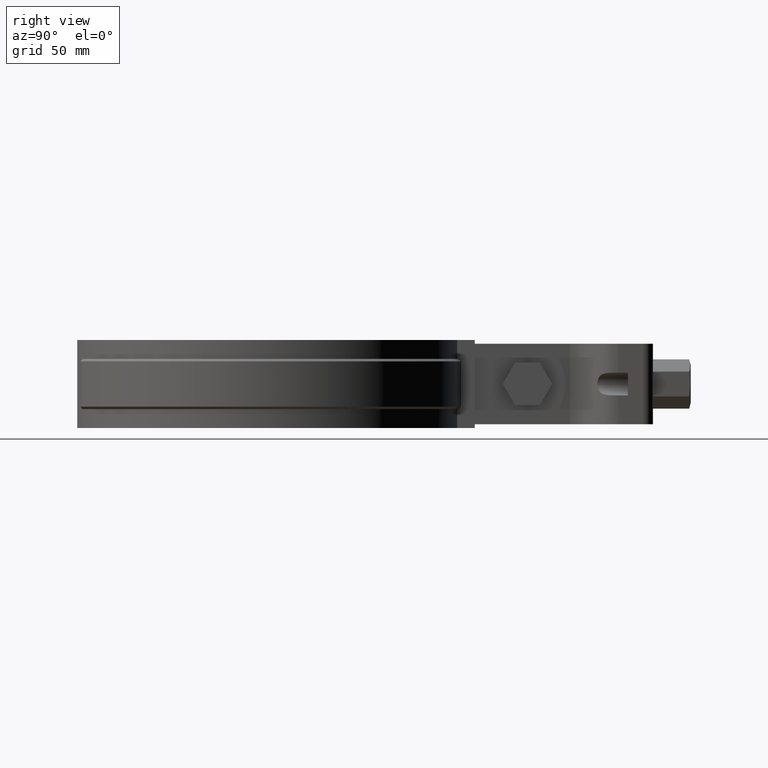
[diagram: clean part render]
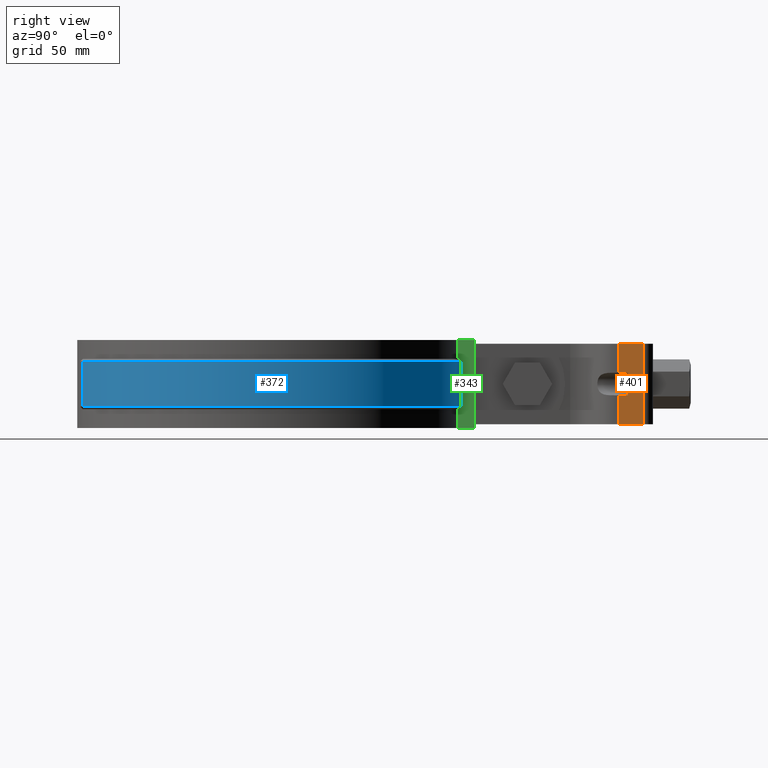
[diagram: same view with three faces highlighted in distinct colors, each labeled with its STEP entity id]
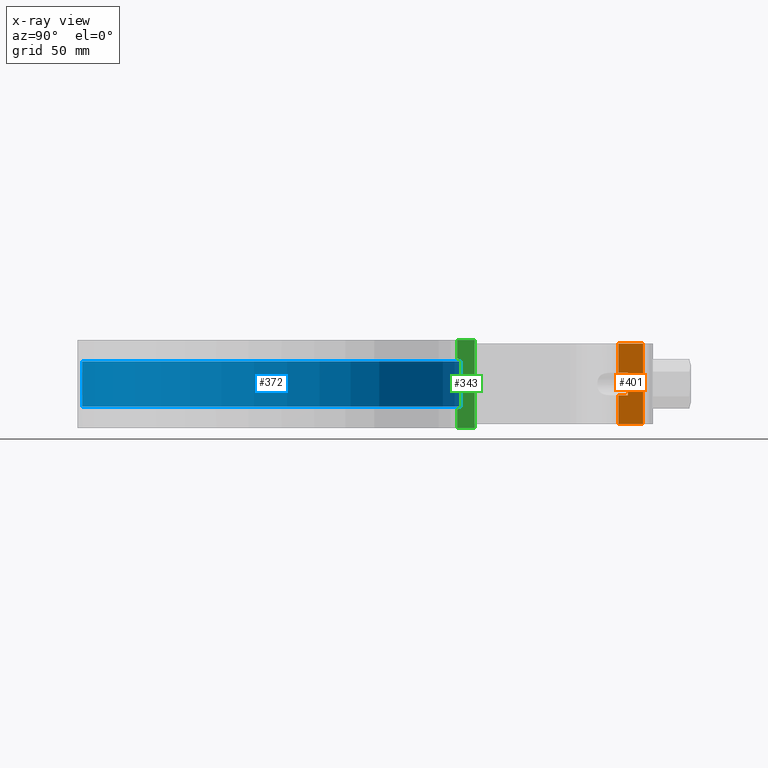
[diagram: x-ray of the same camera — body ghosted, the three highlighted faces saturated]
A machine part, right view with three faces highlighted in distinct colors.
The next image is the same camera in x-ray (body ghosted, the three faces saturated) — at least one of them is partly hidden behind the body in this view.
Their STEP definitions:

[orange] entity #401 — the highlighted planar face has unit normal (1, -0, 0).
#401 = ADVANCED_FACE( '', ( #675 ), #676, .T. );
#675 = FACE_OUTER_BOUND( '', #1810, .T. );
#676 = PLANE( '', #1811 );
#1810 = EDGE_LOOP( '', ( #4233, #4234, #4235, #4236, #4237, #4238, #4239, #4240 ) );
#1811 = AXIS2_PLACEMENT_3D( '', #4241, #4242, #4243 );
#4233 = ORIENTED_EDGE( '', *, *, #5206, .F. );
#4234 = ORIENTED_EDGE( '', *, *, #5207, .T. );
#4235 = ORIENTED_EDGE( '', *, *, #5208, .F. );
#4236 = ORIENTED_EDGE( '', *, *, #5209, .F. );
#4237 = ORIENTED_EDGE( '', *, *, #5210, .F. );
#4238 = ORIENTED_EDGE( '', *, *, #5211, .T. );
#4239 = ORIENTED_EDGE( '', *, *, #5203, .T. );
#4240 = ORIENTED_EDGE( '', *, *, #5212, .F. );
#4241 = CARTESIAN_POINT( '', ( 17.5000000000000, 139.502812218311, -32.0000000000000 ) );
#4242 = DIRECTION( '', ( 1.00000000000000, -6.93889390390723E-017, 0.000000000000000 ) );
#4243 = DIRECTION( '', ( -6.93889390390723E-017, -1.00000000000000, 0.000000000000000 ) );
#5203 = EDGE_CURVE( '', #5833, #5830, #5834, .T. );
#5206 = EDGE_CURVE( '', #5838, #5839, #5840, .T. );
#5207 = EDGE_CURVE( '', #5838, #5841, #5842, .T. );
#5208 = EDGE_CURVE( '', #5843, #5841, #5844, .T. );
#5209 = EDGE_CURVE( '', #5845, #5843, #5846, .T. );
#5210 = EDGE_CURVE( '', #5847, #5845, #5848, .T. );
#5211 = EDGE_CURVE( '', #5847, #5833, #5849, .T. );
#5212 = EDGE_CURVE( '', #5839, #5830, #5850, .T. );
#5830 = VERTEX_POINT( '', #8537 );
#5833 = VERTEX_POINT( '', #8540 );
#5834 = LINE( '', #8541, #8542 );
#5838 = VERTEX_POINT( '', #8547 );
#5839 = VERTEX_POINT( '', #8548 );
#5840 = LINE( '', #8549, #8550 );
#5841 = VERTEX_POINT( '', #8551 );
#5842 = LINE( '', #8552, #8553 );
#5843 = VERTEX_POINT( '', #8554 );
#5844 = LINE( '', #8555, #8556 );
#5845 = VERTEX_POINT( '', #8557 );
#5846 = LINE( '', #8558, #8559 );
#5847 = VERTEX_POINT( '', #8560 );
#5848 = LINE( '', #8561, #8562 );
#5849 = LINE( '', #8563, #8564 );
#5850 = LINE( '', #8565, #8566 );
#8537 = CARTESIAN_POINT( '', ( 17.5000000000000, 149.297141712794, -3.46944695195361E-015 ) );
#8540 = CARTESIAN_POINT( '', ( 17.5000000000000, 149.297141712794, -32.0000000000000 ) );
#8541 = CARTESIAN_POINT( '', ( 17.5000000000000, 149.297141712794, -32.0000000000000 ) );
#8542 = VECTOR( '', #9590, 1000.00000000000 );
#8547 = CARTESIAN_POINT( '', ( 17.5000000000000, 139.502812218311, -11.5000000000000 ) );
#8548 = CARTESIAN_POINT( '', ( 17.5000000000000, 139.502812218311, -3.46944695195361E-015 ) );
#8549 = CARTESIAN_POINT( '', ( 17.5000000000000, 139.502812218311, -32.0000000000000 ) );
#8550 = VECTOR( '', #9595, 1000.00000000000 );
#8551 = CARTESIAN_POINT( '', ( 17.5000000000000, 143.297141712794, -11.5000000000000 ) );
#8552 = CARTESIAN_POINT( '', ( 17.5000000000000, 128.297141712794, -11.5000000000000 ) );
#8553 = VECTOR( '', #9596, 1000.00000000000 );
#8554 = CARTESIAN_POINT( '', ( 17.5000000000000, 143.297141712794, -20.5000000000000 ) );
#8555 = CARTESIAN_POINT( '', ( 17.5000000000000, 143.297141712794, -32.0000000000000 ) );
#8556 = VECTOR( '', #9597, 1000.00000000000 );
#8557 = CARTESIAN_POINT( '', ( 17.5000000000000, 139.502812218311, -20.5000000000000 ) );
#8558 = CARTESIAN_POINT( '', ( 17.5000000000000, 128.297141712794, -20.5000000000000 ) );
#8559 = VECTOR( '', #9598, 1000.00000000000 );
#8560 = CARTESIAN_POINT( '', ( 17.5000000000000, 139.502812218311, -32.0000000000000 ) );
#8561 = CARTESIAN_POINT( '', ( 17.5000000000000, 139.502812218311, -32.0000000000000 ) );
#8562 = VECTOR( '', #9599, 1000.00000000000 );
#8563 = CARTESIAN_POINT( '', ( 17.5000000000000, 139.502812218311, -32.0000000000000 ) );
#8564 = VECTOR( '', #9600, 1000.00000000000 );
#8565 = CARTESIAN_POINT( '', ( 17.5000000000000, 139.502812218311, -3.46944695195361E-015 ) );
#8566 = VECTOR( '', #9601, 1000.00000000000 );
#9590 = DIRECTION( '', ( 0.000000000000000, 0.000000000000000, 1.00000000000000 ) );
#9595 = DIRECTION( '', ( 0.000000000000000, 0.000000000000000, 1.00000000000000 ) );
#9596 = DIRECTION( '', ( -4.11604168809452E-032, 1.00000000000000, -1.83690953073357E-016 ) );
#9597 = DIRECTION( '', ( 1.27461203448362E-032, 1.83690953073357E-016, 1.00000000000000 ) );
#9598 = DIRECTION( '', ( -4.11604168809452E-032, 1.00000000000000, -1.83690953073357E-016 ) );
#9599 = DIRECTION( '', ( 0.000000000000000, 0.000000000000000, 1.00000000000000 ) );
#9600 = DIRECTION( '', ( 6.93889390390723E-017, 1.00000000000000, 0.000000000000000 ) );
#9601 = DIRECTION( '', ( 6.93889390390723E-017, 1.00000000000000, 0.000000000000000 ) );

[blue] entity #372 — the highlighted cylindrical surface (partial cylindrical patch) has radius 77.4 mm, axis along (0, 0, -1).
#372 = ADVANCED_FACE( '', ( #617 ), #618, .T. );
#617 = FACE_OUTER_BOUND( '', #1752, .T. );
#618 = CYLINDRICAL_SURFACE( '', #1753, 77.4000000000000 );
#1752 = EDGE_LOOP( '', ( #3631, #3632, #3633, #3634 ) );
#1753 = AXIS2_PLACEMENT_3D( '', #3635, #3636, #3637 );
#3631 = ORIENTED_EDGE( '', *, *, #5046, .T. );
#3632 = ORIENTED_EDGE( '', *, *, #5146, .T. );
#3633 = ORIENTED_EDGE( '', *, *, #5149, .F. );
#3634 = ORIENTED_EDGE( '', *, *, #5134, .T. );
#3635 = CARTESIAN_POINT( '', ( 6.93889390390723E-015, -2.77555756156289E-014, -26.0000000000000 ) );
#3636 = DIRECTION( '', ( 0.000000000000000, 0.000000000000000, -1.00000000000000 ) );
#3637 = DIRECTION( '', ( 0.306337160039884, -0.951923076923077, 0.000000000000000 ) );
#5046 = EDGE_CURVE( '', #5574, #5575, #5576, .T. );
#5134 = EDGE_CURVE( '', #5729, #5574, #5730, .T. );
#5146 = EDGE_CURVE( '', #5575, #5743, #5747, .F. );
#5149 = EDGE_CURVE( '', #5729, #5743, #5750, .T. );
#5574 = VERTEX_POINT( '', #7279 );
#5575 = VERTEX_POINT( '', #7280 );
#5576 = LINE( '', #7281, #7282 );
#5729 = VERTEX_POINT( '', #8274 );
#5730 = CIRCLE( '', #8275, 77.4000000000000 );
#5743 = VERTEX_POINT( '', #8292 );
#5747 = CIRCLE( '', #8297, 77.4000000000000 );
#5750 = LINE( '', #8302, #8303 );
#7279 = CARTESIAN_POINT( '', ( 8.39999999999995, 76.9428359238208, -25.0000000000000 ) );
#7280 = CARTESIAN_POINT( '', ( 8.39999999999995, 76.9428359238208, -7.00000000000001 ) );
#7281 = CARTESIAN_POINT( '', ( 8.39999999999995, 76.9428359238208, -26.0000000000000 ) );
#7282 = VECTOR( '', #9370, 1000.00000000000 );
#8274 = CARTESIAN_POINT( '', ( 23.7104961870871, -73.6788461538462, -25.0000000000000 ) );
#8275 = AXIS2_PLACEMENT_3D( '', #9470, #9471, #9472 );
#8292 = CARTESIAN_POINT( '', ( 23.7104961870871, -73.6788461538462, -7.00000000000001 ) );
#8297 = AXIS2_PLACEMENT_3D( '', #9496, #9497, #9498 );
#8302 = CARTESIAN_POINT( '', ( 23.7104961870871, -73.6788461538462, -26.0000000000000 ) );
#8303 = VECTOR( '', #9501, 1000.00000000000 );
#9370 = DIRECTION( '', ( 0.000000000000000, 0.000000000000000, 1.00000000000000 ) );
#9470 = CARTESIAN_POINT( '', ( 6.93889390390723E-015, -2.77555756156289E-014, -25.0000000000000 ) );
#9471 = DIRECTION( '', ( 0.000000000000000, 0.000000000000000, 1.00000000000000 ) );
#9472 = DIRECTION( '', ( 1.00000000000000, 0.000000000000000, 0.000000000000000 ) );
#9496 = CARTESIAN_POINT( '', ( 6.93889390390723E-015, -2.77555756156289E-014, -7.00000000000000 ) );
#9497 = DIRECTION( '', ( 0.000000000000000, 0.000000000000000, 1.00000000000000 ) );
#9498 = DIRECTION( '', ( 1.00000000000000, 0.000000000000000, 0.000000000000000 ) );
#9501 = DIRECTION( '', ( 0.000000000000000, 0.000000000000000, 1.00000000000000 ) );

[green] entity #343 — the highlighted planar face has unit normal (-1, 0, 0).
#343 = ADVANCED_FACE( '', ( #557 ), #558, .F. );
#557 = FACE_OUTER_BOUND( '', #1319, .T. );
#558 = PLANE( '', #1320 );
#1319 = EDGE_LOOP( '', ( #3000, #3001, #3002, #3003, #3004, #3005, #3006, #3007, #3008, #3009 ) );
#1320 = AXIS2_PLACEMENT_3D( '', #3010, #3011, #3012 );
#3000 = ORIENTED_EDGE( '', *, *, #5046, .F. );
#3001 = ORIENTED_EDGE( '', *, *, #5047, .T. );
#3002 = ORIENTED_EDGE( '', *, *, #5048, .T. );
#3003 = ORIENTED_EDGE( '', *, *, #5049, .F. );
#3004 = ORIENTED_EDGE( '', *, *, #5050, .F. );
#3005 = ORIENTED_EDGE( '', *, *, #5051, .T. );
#3006 = ORIENTED_EDGE( '', *, *, #5052, .T. );
#3007 = ORIENTED_EDGE( '', *, *, #5053, .F. );
#3008 = ORIENTED_EDGE( '', *, *, #5054, .F. );
#3009 = ORIENTED_EDGE( '', *, *, #5055, .T. );
#3010 = CARTESIAN_POINT( '', ( 8.39999999999999, 82.4000000000000, -33.5000000000000 ) );
#3011 = DIRECTION( '', ( -1.00000000000000, 5.55111512312578E-017, 0.000000000000000 ) );
#3012 = DIRECTION( '', ( 5.55111512312578E-017, 1.00000000000000, 0.000000000000000 ) );
#5046 = EDGE_CURVE( '', #5574, #5575, #5576, .T. );
#5047 = EDGE_CURVE( '', #5574, #5577, #5578, .T. );
#5048 = EDGE_CURVE( '', #5577, #5579, #5580, .T. );
#5049 = EDGE_CURVE( '', #5581, #5579, #5582, .T. );
#5050 = EDGE_CURVE( '', #5583, #5581, #5584, .T. );
#5051 = EDGE_CURVE( '', #5583, #5585, #5586, .T. );
#5052 = EDGE_CURVE( '', #5585, #5587, #5588, .T. );
#5053 = EDGE_CURVE( '', #5589, #5587, #5590, .T. );
#5054 = EDGE_CURVE( '', #5591, #5589, #5592, .T. );
#5055 = EDGE_CURVE( '', #5591, #5575, #5593, .T. );
#5574 = VERTEX_POINT( '', #7279 );
#5575 = VERTEX_POINT( '', #7280 );
#5576 = LINE( '', #7281, #7282 );
#5577 = VERTEX_POINT( '', #7283 );
#5578 = B_SPLINE_CURVE_WITH_KNOTS( '', 3, ( #7284, #7285, #7286, #7287 ), .UNSPECIFIED., .F., .F., ( 4, 4 ), ( 1.96261557335472E-017, 0.00141847679147928 ), .UNSPECIFIED. );
#5579 = VERTEX_POINT( '', #7288 );
#5580 = LINE( '', #7289, #7290 );
#5581 = VERTEX_POINT( '', #7291 );
#5582 = LINE( '', #7292, #7293 );
#5583 = VERTEX_POINT( '', #7294 );
#5584 = LINE( '', #7295, #7296 );
#5585 = VERTEX_POINT( '', #7297 );
#5586 = LINE( '', #7298, #7299 );
#5587 = VERTEX_POINT( '', #7300 );
#5588 = LINE( '', #7301, #7302 );
#5589 = VERTEX_POINT( '', #7303 );
#5590 = LINE( '', #7304, #7305 );
#5591 = VERTEX_POINT( '', #7306 );
#5592 = LINE( '', #7307, #7308 );
#5593 = B_SPLINE_CURVE_WITH_KNOTS( '', 3, ( #7309, #7310, #7311, #7312 ), .UNSPECIFIED., .F., .F., ( 4, 4 ), ( 0.000000000000000, 0.00141847679147930 ), .UNSPECIFIED. );
#7279 = CARTESIAN_POINT( '', ( 8.39999999999995, 76.9428359238208, -25.0000000000000 ) );
#7280 = CARTESIAN_POINT( '', ( 8.39999999999995, 76.9428359238208, -7.00000000000001 ) );
#7281 = CARTESIAN_POINT( '', ( 8.39999999999995, 76.9428359238208, -26.0000000000000 ) );
#7282 = VECTOR( '', #9370, 1000.00000000000 );
#7283 = CARTESIAN_POINT( '', ( 8.40000000000000, 75.9368158405394, -26.0000000000000 ) );
#7284 = CARTESIAN_POINT( '', ( 8.39999999999995, 76.9428359238207, -25.0000000000000 ) );
#7285 = CARTESIAN_POINT( '', ( 8.39999999999995, 76.6075088977390, -25.3333464127730 ) );
#7286 = CARTESIAN_POINT( '', ( 8.39999999999999, 76.2721690406654, -25.6666799188547 ) );
#7287 = CARTESIAN_POINT( '', ( 8.39999999999999, 75.9368158405394, -26.0000000000000 ) );
#7288 = CARTESIAN_POINT( '', ( 8.40000000000000, 75.4337457640809, -26.0000000000000 ) );
#7289 = CARTESIAN_POINT( '', ( 8.40000000000000, 76.9428359238207, -26.0000000000000 ) );
#7290 = VECTOR( '', #9371, 1000.00000000000 );
#7291 = CARTESIAN_POINT( '', ( 8.40000000000001, 75.4337457640809, -33.5000000000000 ) );
#7292 = CARTESIAN_POINT( '', ( 8.40000000000001, 75.4337457640809, -33.5000000000000 ) );
#7293 = VECTOR( '', #9372, 1000.00000000000 );
#7294 = CARTESIAN_POINT( '', ( 8.39999999999999, 82.4000000000000, -33.5000000000000 ) );
#7295 = CARTESIAN_POINT( '', ( 8.39999999999999, 82.4000000000000, -33.5000000000000 ) );
#7296 = VECTOR( '', #9373, 1000.00000000000 );
#7297 = CARTESIAN_POINT( '', ( 8.39999999999999, 82.4000000000000, 1.50000000000000 ) );
#7298 = CARTESIAN_POINT( '', ( 8.39999999999999, 82.4000000000000, -33.5000000000000 ) );
#7299 = VECTOR( '', #9374, 1000.00000000000 );
#7300 = CARTESIAN_POINT( '', ( 8.40000000000001, 75.4337457640809, 1.50000000000000 ) );
#7301 = CARTESIAN_POINT( '', ( 8.39999999999999, 82.4000000000000, 1.50000000000000 ) );
#7302 = VECTOR( '', #9375, 1000.00000000000 );
#7303 = CARTESIAN_POINT( '', ( 8.40000000000001, 75.4337457640809, -6.00000000000000 ) );
#7304 = CARTESIAN_POINT( '', ( 8.40000000000001, 75.4337457640809, -33.5000000000000 ) );
#7305 = VECTOR( '', #9376, 1000.00000000000 );
#7306 = CARTESIAN_POINT( '', ( 8.40000000000000, 75.9368158405394, -6.00000000000000 ) );
#7307 = CARTESIAN_POINT( '', ( 8.40000000000000, 76.9428359238207, -6.00000000000000 ) );
#7308 = VECTOR( '', #9377, 1000.00000000000 );
#7309 = CARTESIAN_POINT( '', ( 8.40000000000000, 75.9368158405394, -6.00000000000000 ) );
#7310 = CARTESIAN_POINT( '', ( 8.40000000000000, 76.2721690406654, -6.33332008114534 ) );
#7311 = CARTESIAN_POINT( '', ( 8.39999999999999, 76.6075088977390, -6.66665358722698 ) );
#7312 = CARTESIAN_POINT( '', ( 8.39999999999999, 76.9428359238207, -7.00000000000000 ) );
#9370 = DIRECTION( '', ( 0.000000000000000, 0.000000000000000, 1.00000000000000 ) );
#9371 = DIRECTION( '', ( 0.000000000000000, -1.00000000000000, 0.000000000000000 ) );
#9372 = DIRECTION( '', ( 0.000000000000000, 0.000000000000000, 1.00000000000000 ) );
#9373 = DIRECTION( '', ( -5.55111512312578E-017, -1.00000000000000, 0.000000000000000 ) );
#9374 = DIRECTION( '', ( 0.000000000000000, 0.000000000000000, 1.00000000000000 ) );
#9375 = DIRECTION( '', ( -5.55111512312578E-017, -1.00000000000000, 0.000000000000000 ) );
#9376 = DIRECTION( '', ( 0.000000000000000, 0.000000000000000, 1.00000000000000 ) );
#9377 = DIRECTION( '', ( 0.000000000000000, -1.00000000000000, 0.000000000000000 ) );